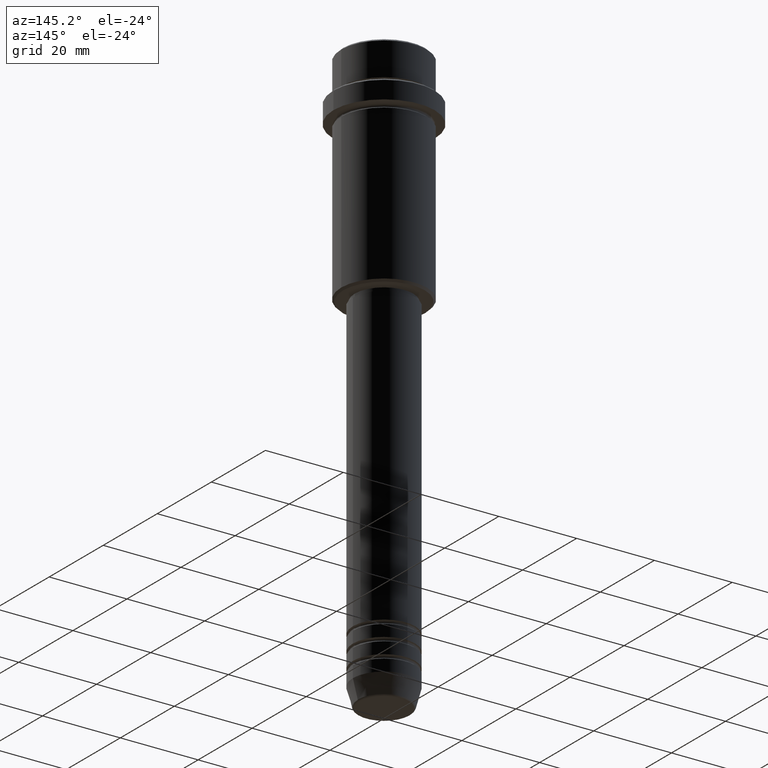
[diagram: clean part render]
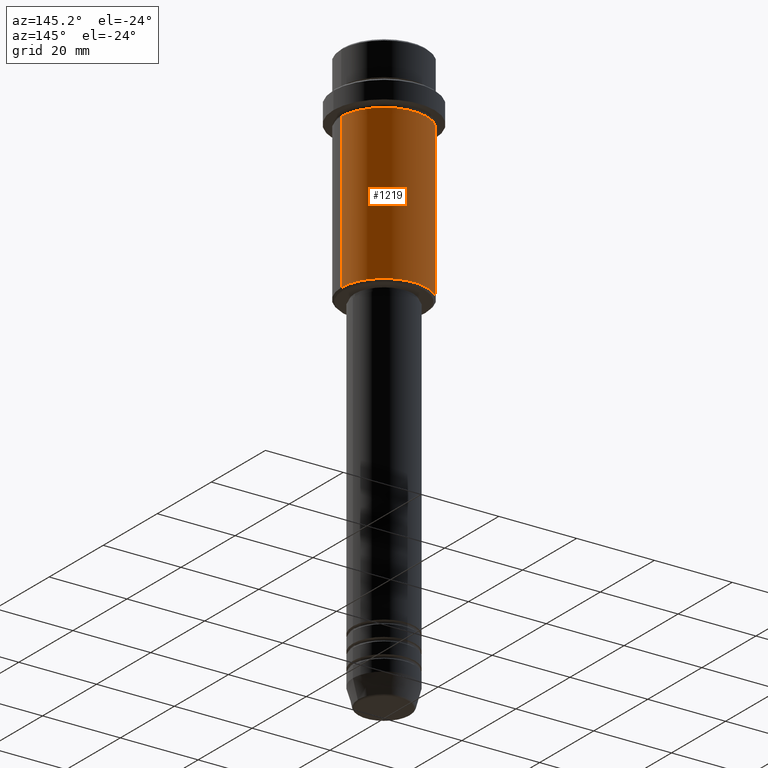
[diagram: same view with one face highlighted and labeled with its STEP entity id]
A machine part, auxiliary view. The second image highlights one B-rep face of the part: STEP entity #1219.
In plain terms, the highlighted cylindrical surface (partial cylindrical patch) has radius 11 mm, axis along (-0, -0, 1).
Its self-contained STEP definition (entity closure, byte-faithful):
#9 = CARTESIAN_POINT ( 'NONE',  ( -10.99999999999997158, 1.347111479062085841E-15, -16.00000000000000355 ) ) ;
#27 = CARTESIAN_POINT ( 'NONE',  ( 0.000000000000000000, 0.000000000000000000, -16.00000000000000355 ) ) ;
#81 = AXIS2_PLACEMENT_3D ( 'NONE', #27, #1352, #383 ) ;
#113 = VERTEX_POINT ( 'NONE', #739 ) ;
#173 = CYLINDRICAL_SURFACE ( 'NONE', #797, 10.99999999999998757 ) ;
#176 = VECTOR ( 'NONE', #406, 1000.000000000000000 ) ;
#380 = VERTEX_POINT ( 'NONE', #838 ) ;
#383 = DIRECTION ( 'NONE',  ( 1.000000000000000000, 0.000000000000000000, 0.000000000000000000 ) ) ;
#406 = DIRECTION ( 'NONE',  ( -0.000000000000000000, -0.000000000000000000, 1.000000000000000000 ) ) ;
#436 = ORIENTED_EDGE ( 'NONE', *, *, #1118, .F. ) ;
#500 = VERTEX_POINT ( 'NONE', #763 ) ;
#523 = VECTOR ( 'NONE', #1040, 1000.000000000000000 ) ;
#551 = EDGE_LOOP ( 'NONE', ( #1088, #1045, #436, #911 ) ) ;
#728 = FACE_OUTER_BOUND ( 'NONE', #551, .T. ) ;
#730 = LINE ( 'NONE', #1257, #523 ) ;
#739 = CARTESIAN_POINT ( 'NONE',  ( 10.99999999999998757, 0.000000000000000000, -55.50000000000002132 ) ) ;
#741 = EDGE_CURVE ( 'NONE', #113, #380, #730, .T. ) ;
#756 = AXIS2_PLACEMENT_3D ( 'NONE', #906, #1324, #1328 ) ;
#763 = CARTESIAN_POINT ( 'NONE',  ( -10.99999999999998757, 1.347111479062086827E-15, -55.50000000000002132 ) ) ;
#797 = AXIS2_PLACEMENT_3D ( 'NONE', #1399, #1196, #1079 ) ;
#838 = CARTESIAN_POINT ( 'NONE',  ( 10.99999999999997158, 0.000000000000000000, -16.00000000000000355 ) ) ;
#855 = CARTESIAN_POINT ( 'NONE',  ( -10.99999999999998757, 1.347111479062086827E-15, 0.000000000000000000 ) ) ;
#865 = VERTEX_POINT ( 'NONE', #9 ) ;
#873 = EDGE_CURVE ( 'NONE', #113, #500, #1394, .T. ) ;
#906 = CARTESIAN_POINT ( 'NONE',  ( 0.000000000000000000, 0.000000000000000000, -55.50000000000002132 ) ) ;
#911 = ORIENTED_EDGE ( 'NONE', *, *, #741, .F. ) ;
#1040 = DIRECTION ( 'NONE',  ( -0.000000000000000000, -0.000000000000000000, 1.000000000000000000 ) ) ;
#1045 = ORIENTED_EDGE ( 'NONE', *, *, #1225, .T. ) ;
#1052 = LINE ( 'NONE', #855, #176 ) ;
#1079 = DIRECTION ( 'NONE',  ( 1.000000000000000000, 0.000000000000000000, 0.000000000000000000 ) ) ;
#1088 = ORIENTED_EDGE ( 'NONE', *, *, #873, .T. ) ;
#1118 = EDGE_CURVE ( 'NONE', #380, #865, #1361, .T. ) ;
#1196 = DIRECTION ( 'NONE',  ( -0.000000000000000000, -0.000000000000000000, 1.000000000000000000 ) ) ;
#1219 = ADVANCED_FACE ( 'NONE', ( #728 ), #173, .T. ) ;
#1225 = EDGE_CURVE ( 'NONE', #500, #865, #1052, .T. ) ;
#1257 = CARTESIAN_POINT ( 'NONE',  ( 10.99999999999998757, 0.000000000000000000, 0.000000000000000000 ) ) ;
#1324 = DIRECTION ( 'NONE',  ( -0.000000000000000000, -0.000000000000000000, 1.000000000000000000 ) ) ;
#1328 = DIRECTION ( 'NONE',  ( -1.000000000000000000, 0.000000000000000000, 0.000000000000000000 ) ) ;
#1352 = DIRECTION ( 'NONE',  ( -0.000000000000000000, -0.000000000000000000, 1.000000000000000000 ) ) ;
#1361 = CIRCLE ( 'NONE', #81, 10.99999999999997158 ) ;
#1394 = CIRCLE ( 'NONE', #756, 10.99999999999998757 ) ;
#1399 = CARTESIAN_POINT ( 'NONE',  ( 0.000000000000000000, 0.000000000000000000, 0.000000000000000000 ) ) ;